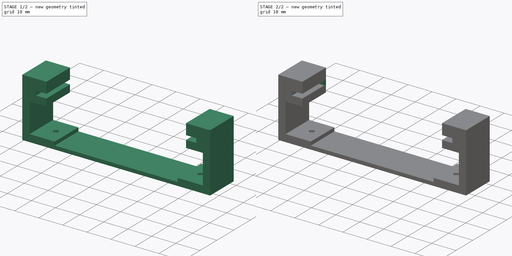
[diagram: build sequence overview — one tinted view per stage of 2, left to right]
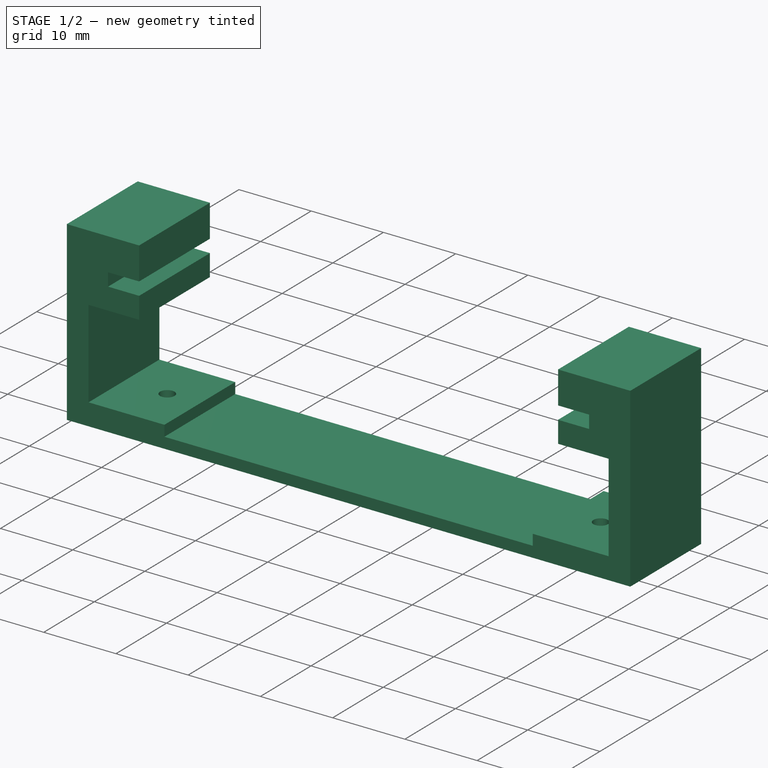
[diagram: stage 1 of 2 — iso view after this stage's code; geometry added in this stage tinted green]
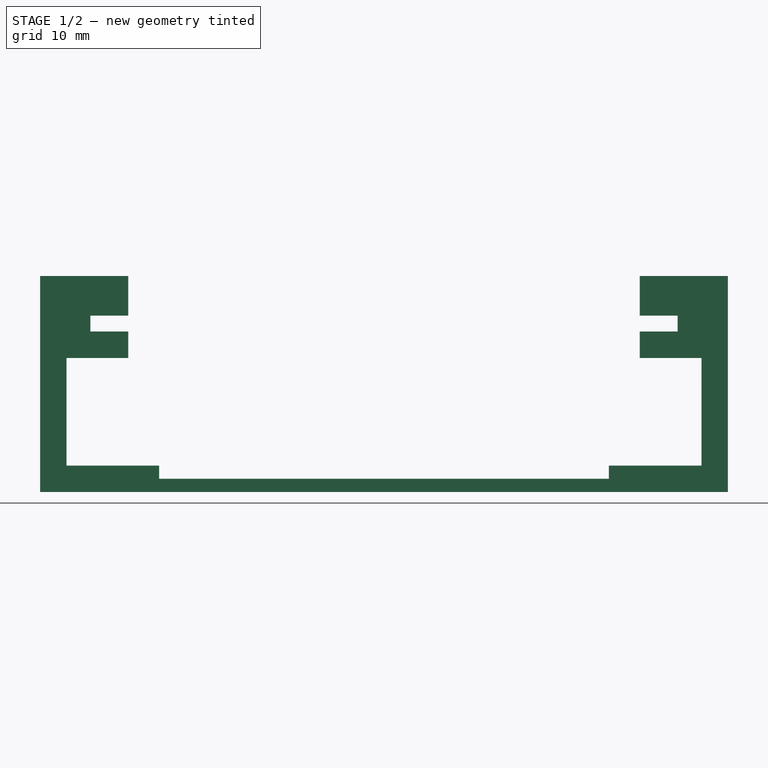
[diagram: stage 1 of 2 — front view after this stage's code; geometry added in this stage tinted green]
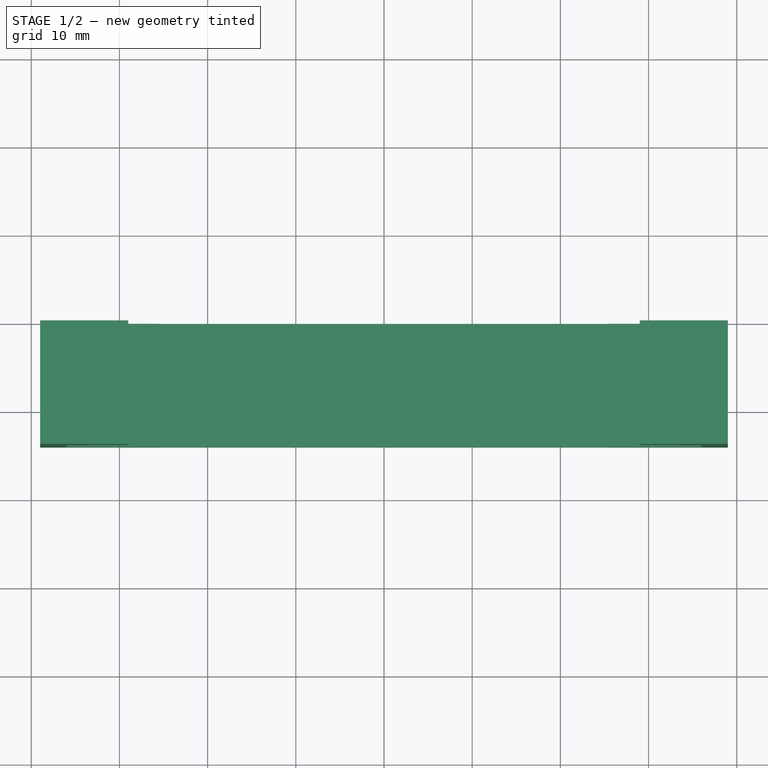
[diagram: stage 1 of 2 — top view after this stage's code; geometry added in this stage tinted green]
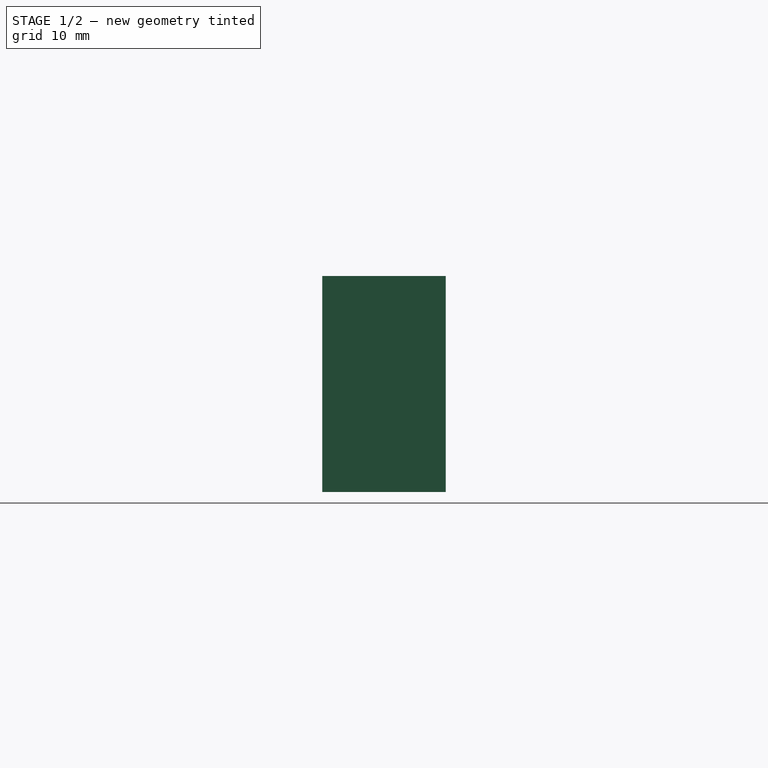
[diagram: stage 1 of 2 — right view after this stage's code; geometry added in this stage tinted green]
FCSTD DOCUMENT  (FreeCAD 0.18R16146 (Git))
Label: DiscoF4_Bracket_v1
License: All rights reserved
LicenseURL: http://en.wikipedia.org/wiki/All_rights_reserved
objects: Sketcher::SketchObject×3, PartDesign::Pad×2, PartDesign::Pocket×1, PartDesign::Body×1
note: 10 computed .brp shape members not serialized (recipe doc carries the construction recipe); baked Part::Feature solids carry a one-line shape summary decoded from their .brp

FEATURE [Sketcher::SketchObject] Sketch  label="bracket_main_sk"
  MapMode = 5
  Placement = pos=(0,0,0) rot=(1,0,0;1.5708rad)
  Support = -> [XZ_Plane]
  sketch-geometry (30):
    g0: LineSegment [constr] StartX=-33 StartY=0 StartZ=0 EndX=33 EndY=0 EndZ=0
    g1: LineSegment [constr] StartX=33 StartY=0 StartZ=0 EndX=33 EndY=-1.6 EndZ=0
    g2: LineSegment [constr] StartX=33 StartY=-1.6 StartZ=0 EndX=-33 EndY=-1.6 EndZ=0
    g3: LineSegment [constr] StartX=-33 StartY=-1.6 StartZ=0 EndX=-33 EndY=0 EndZ=0
    g4: LineSegment StartX=-33.3 StartY=0 StartZ=0 EndX=-33.3 EndY=-1.8 EndZ=0
    g5: LineSegment StartX=-33.3 StartY=-1.8 StartZ=0 EndX=-29 EndY=-1.8 EndZ=0
    g6: LineSegment StartX=-29 StartY=-1.8 StartZ=0 EndX=-29 EndY=-4.8 EndZ=0
    g7: LineSegment StartX=-29 StartY=-4.8 StartZ=0 EndX=-36 EndY=-4.8 EndZ=0
    g8: LineSegment StartX=-36 StartY=-4.8 StartZ=0 EndX=-36 EndY=-17 EndZ=0
    g9: LineSegment StartX=-36 StartY=-17 StartZ=0 EndX=-25.5 EndY=-17 EndZ=0
    g10: LineSegment StartX=-39 StartY=-20 StartZ=0 EndX=-39 EndY=4.5 EndZ=0
    g11: LineSegment StartX=-33.3 StartY=0 StartZ=0 EndX=-29 EndY=0 EndZ=0
    g12: LineSegment StartX=-29 StartY=0 StartZ=0 EndX=-29 EndY=4.5 EndZ=0
    g13: LineSegment StartX=-29 StartY=4.5 StartZ=0 EndX=-39 EndY=4.5 EndZ=0
    g14: LineSegment StartX=36 StartY=-4.8 StartZ=0 EndX=36 EndY=-17 EndZ=0
    g15: LineSegment StartX=29 StartY=-4.8 StartZ=0 EndX=36 EndY=-4.8 EndZ=0
    g16: LineSegment StartX=29 StartY=-1.8 StartZ=0 EndX=29 EndY=-4.8 EndZ=0
    g17: LineSegment StartX=33.3 StartY=-1.8 StartZ=0 EndX=29 EndY=-1.8 EndZ=0
    g18: LineSegment StartX=33.3 StartY=0 StartZ=0 EndX=33.3 EndY=-1.8 EndZ=0
    g19: LineSegment StartX=33.3 StartY=0 StartZ=0 EndX=29 EndY=0 EndZ=0
    g20: LineSegment StartX=29 StartY=0 StartZ=0 EndX=29 EndY=4.5 EndZ=0
    g21: LineSegment StartX=29 StartY=4.5 StartZ=0 EndX=39 EndY=4.5 EndZ=0
    g22: LineSegment StartX=39 StartY=-20 StartZ=0 EndX=39 EndY=4.5 EndZ=0
    g23: LineSegment StartX=36 StartY=-17 StartZ=0 EndX=25.5 EndY=-17 EndZ=0
    g24: LineSegment [constr] StartX=-29 StartY=-4.8 StartZ=0 EndX=29 EndY=-4.8 EndZ=0
    g25: LineSegment [constr] StartX=-29 StartY=4.5 StartZ=0 EndX=29 EndY=4.5 EndZ=0
    g26: LineSegment StartX=39 StartY=-20 StartZ=0 EndX=-39 EndY=-20 EndZ=0
    g27: LineSegment StartX=-25.5 StartY=-17 StartZ=0 EndX=-25.5 EndY=-18.5 EndZ=0
    g28: LineSegment StartX=-25.5 StartY=-18.5 StartZ=0 EndX=25.5 EndY=-18.5 EndZ=0
    g29: LineSegment StartX=25.5 StartY=-18.5 StartZ=0 EndX=25.5 EndY=-17 EndZ=0
  constraints (78):
    c: Coincident(g0,g1)
    c: Coincident(g1,g2)
    c: Coincident(g2,g3)
    c: Coincident(g3,g0)
    c: Horizontal(g2)
    c: Vertical(g1)
    c: Vertical(g3)
    c: PointOnObject(g0,g-1)
    c: Symmetric(g0,g0,g-2)
    c: DistanceX(g0,g0) = 66
    c: DistanceY(g3,g3) = 1.6
    c: Vertical(g4)
    c: Coincident(g4,g5)
    c: Horizontal(g5)
    c: Coincident(g5,g6)
    c: Vertical(g6)
    c: Coincident(g6,g7)
    c: Horizontal(g7)
    c: Coincident(g7,g8)
    c: Vertical(g8)
    c: Coincident(g8,g9)
    c: Horizontal(g9)
    c: Vertical(g10)
    c: Coincident(g4,g11)
    c: PointOnObject(g11,g0)
    c: Horizontal(g11)
    c: Coincident(g11,g12)
    c: Vertical(g12)
    c: Coincident(g12,g13)
    c: Horizontal(g13)
    c: Coincident(g10,g13)
    c: DistanceX(g13,g13) = 10
    c: DistanceY(g4,g4) = 1.8
    c: DistanceY(g6,g6) = 3
    c: DistanceY(g8,g4) = 17
    c: Vertical(g18)
    c: Coincident(g18,g17)
    c: Horizontal(g17)
    c: Coincident(g17,g16)
    c: Vertical(g16)
    c: Coincident(g16,g15)
    c: Horizontal(g15)
    c: Coincident(g15,g14)
    c: Vertical(g14)
    c: Coincident(g14,g23)
    c: Horizontal(g23)
    c: Vertical(g22)
    c: Coincident(g18,g19)
    c: Coincident(g19,g20)
    c: Vertical(g20)
    c: Coincident(g20,g21)
    c: Horizontal(g21)
    c: Coincident(g22,g21)
    c: Symmetric(g4,g18,g-2)
    c: DistanceX(g4,g18) = 66.6
    c: Symmetric(g11,g19,g-2)
    c: DistanceX(g10,g21) = 78
    c: Coincident(g24,g6)
    c: Coincident(g24,g15)
    c: Horizontal(g24)
    c: Coincident(g25,g12)
    c: Coincident(g25,g20)
    c: Equal(g25,g24)
    c: Symmetric(g10,g21,g-2)
    c: DistanceY(g21) = 4.5
    c: Symmetric(g9,g23,g-2)
    c: Coincident(g26,g22)
    c: Coincident(g26,g10)
    c: Horizontal(g26)
    c: Coincident(g27,g9)
    c: Vertical(g27)
    c: Coincident(g27,g28)
    c: Horizontal(g28)
    c: Coincident(g28,g29)
    c: Coincident(g29,g23)
    c: Vertical(g29)
    c: DistanceY(g10,g27) = 1.5
    c: DistanceY(g10,g8) = 3
FEATURE [PartDesign::Pad] Pad  label="bracket_main"
  Length = 14
  Length2 = 100
  Placement = pos=(0,0,0) rot=(1,0,0;1.5708rad)
  Profile = -> Sketch
  Type = 0
FEATURE [Sketcher::SketchObject] Sketch001
  MapMode = 5
  Placement = pos=(0,-4.4e-15,-20) rot=(1,0,0;3.14159rad)
  Support = -> [Pad]
  sketch-geometry (6):
    g0: LineSegment [constr] StartX=-36 StartY=0 StartZ=0 EndX=-25.5 EndY=0 EndZ=0
    g1: LineSegment [constr] StartX=-25.5 StartY=0 StartZ=0 EndX=-25.5 EndY=14 EndZ=0
    g2: LineSegment [constr] StartX=-25.5 StartY=14 StartZ=0 EndX=-36 EndY=14 EndZ=0
    g3: LineSegment [constr] StartX=-36 StartY=14 StartZ=0 EndX=-36 EndY=0 EndZ=0
    g4: Circle CenterX=-30 CenterY=7 CenterZ=0 NormalX=0 NormalY=0 NormalZ=1 AngleXU=0 Radius=1
    g5: Circle CenterX=30 CenterY=7 CenterZ=0 NormalX=0 NormalY=0 NormalZ=1 AngleXU=0 Radius=1
  constraints (15):
    c: Coincident(g0,g1)
    c: Coincident(g1,g2)
    c: Coincident(g2,g3)
    c: Coincident(g3,g0)
    c: Horizontal(g0)
    c: Horizontal(g2)
    c: Vertical(g1)
    c: Vertical(g3)
    c: DistanceX(g2,g2) = 10.5
    c: DistanceY(g3,g3) = 14
    c: DistanceY(g-1,g4) = 7
    c: Symmetric(g5,g4,g-2)
    c: DistanceX(g4,g5) = 60
    c: Diameter(g4) = 2
    c: Equal(g5,g4)
FEATURE [PartDesign::Pocket] Pocket  label="bracket_w_mnt_holes"
  BaseFeature = -> Pad
  Length = 5
  Length2 = 100
  Placement = pos=(0,0,0) rot=(1,0,0;1.5708rad)
  Profile = -> Sketch001
  Type = 0
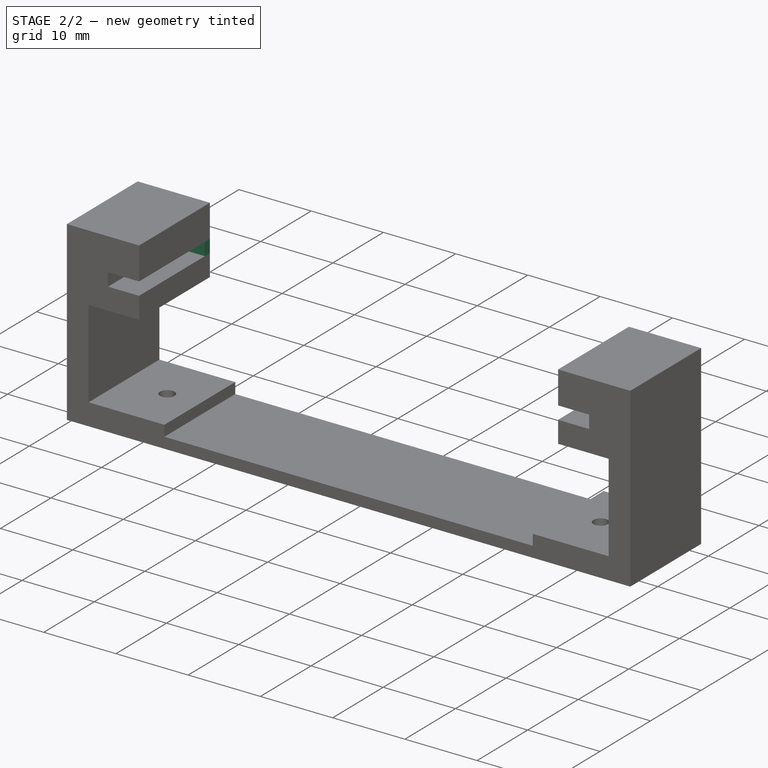
[diagram: stage 2 of 2 — iso view after this stage's code; geometry added in this stage tinted green]
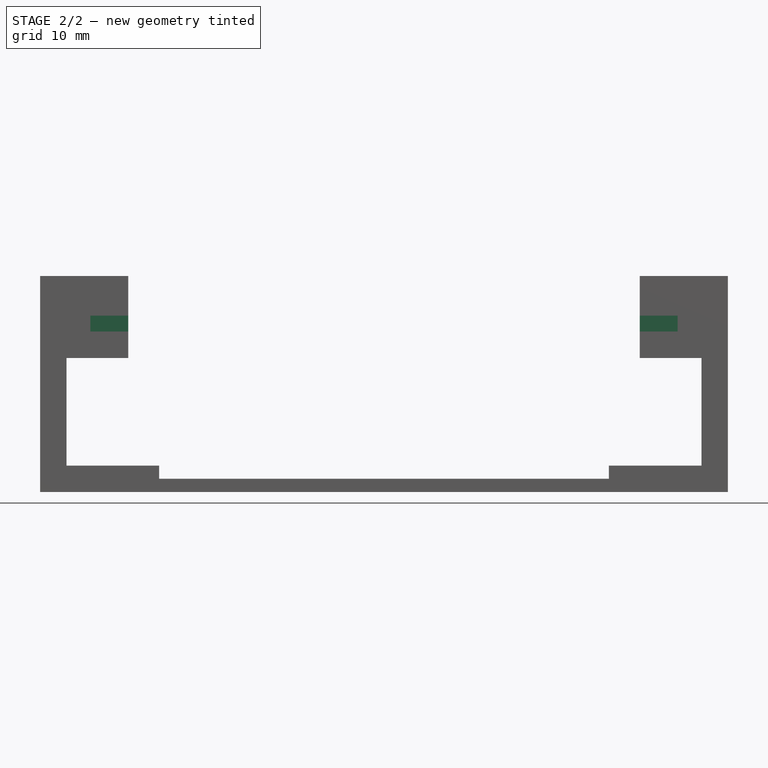
[diagram: stage 2 of 2 — front view after this stage's code; geometry added in this stage tinted green]
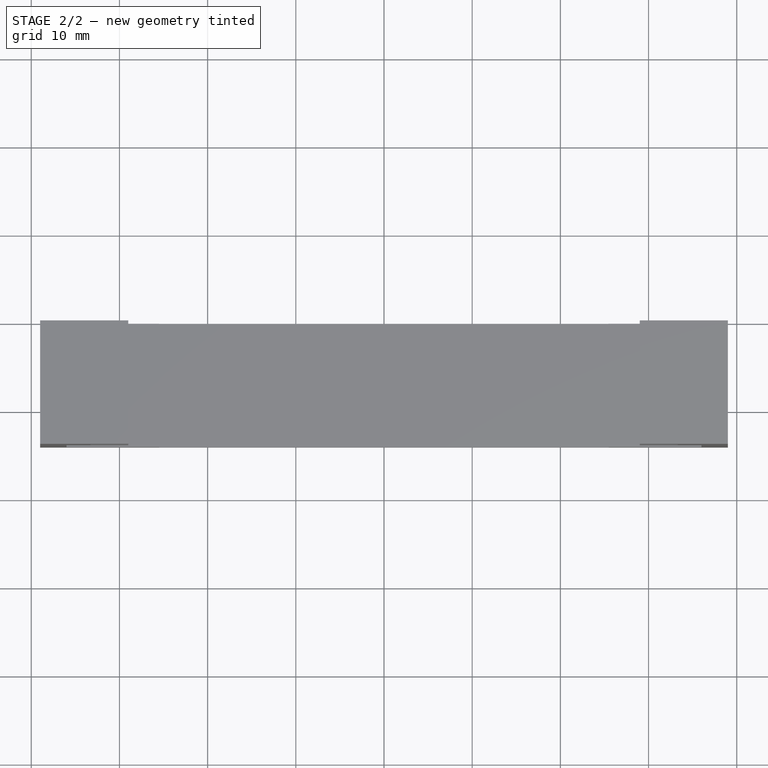
[diagram: stage 2 of 2 — top view after this stage's code; geometry added in this stage tinted green]
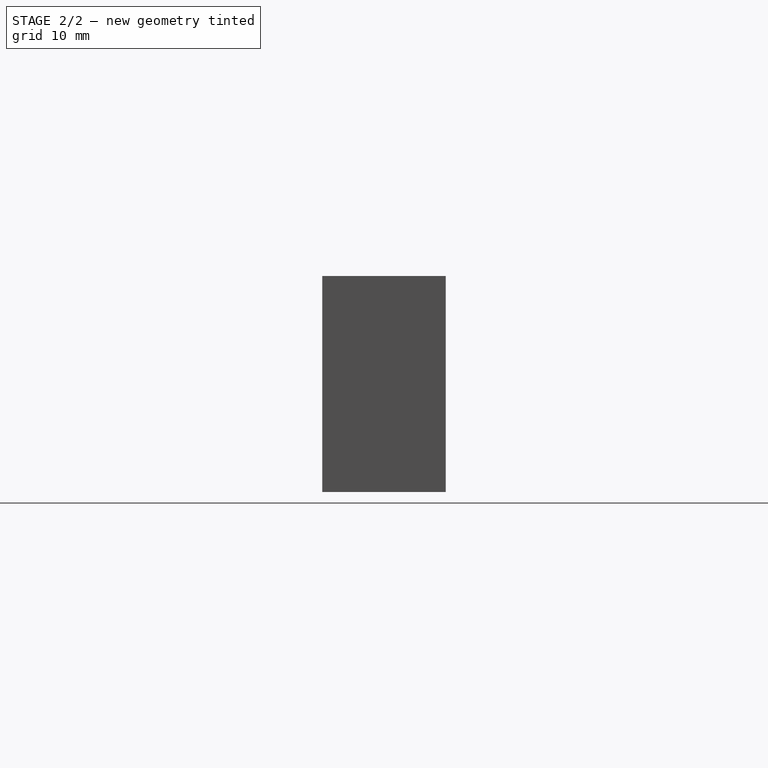
[diagram: stage 2 of 2 — right view after this stage's code; geometry added in this stage tinted green]
FEATURE [Sketcher::SketchObject] Sketch002
  MapMode = 5
  Placement = pos=(0,0,0) rot=(-1,0,0;1.5708rad)
  Support = -> [Pocket]
  sketch-geometry (8):
    g0: LineSegment StartX=-29 StartY=-0.5 StartZ=0 EndX=-34 EndY=-0.5 EndZ=0
    g1: LineSegment StartX=-34 StartY=-0.5 StartZ=0 EndX=-34 EndY=2.5 EndZ=0
    g2: LineSegment StartX=-34 StartY=2.5 StartZ=0 EndX=-29 EndY=2.5 EndZ=0
    g3: LineSegment StartX=-29 StartY=2.5 StartZ=0 EndX=-29 EndY=-0.5 EndZ=0
    g4: LineSegment StartX=29 StartY=-0.5 StartZ=0 EndX=34 EndY=-0.5 EndZ=0
    g5: LineSegment StartX=34 StartY=-0.5 StartZ=0 EndX=34 EndY=2.5 EndZ=0
    g6: LineSegment StartX=34 StartY=2.5 StartZ=0 EndX=29 EndY=2.5 EndZ=0
    g7: LineSegment StartX=29 StartY=2.5 StartZ=0 EndX=29 EndY=-0.5 EndZ=0
  constraints (16):
    c: Coincident(g0,g1)
    c: Coincident(g1,g2)
    c: Coincident(g2,g3)
    c: Coincident(g3,g0)
    c: Horizontal(g0)
    c: Horizontal(g2)
    c: Vertical(g1)
    c: Vertical(g3)
    c: Coincident(g4,g5)
    c: Coincident(g5,g6)
    c: Coincident(g6,g7)
    c: Coincident(g7,g4)
    c: Horizontal(g4)
    c: Horizontal(g6)
    c: Vertical(g5)
    c: Vertical(g7)
FEATURE [PartDesign::Pad] Pad001  label="bracket_w_limiters"
  BaseFeature = -> Pocket
  Length = 1
  Length2 = 100
  Placement = pos=(0,0,0) rot=(1,0,0;1.5708rad)
  Profile = -> Sketch002
  Reversed = true
  Type = 0
FEATURE [PartDesign::Body] Body
  Group = -> [Sketch,Pad,Sketch001,Pocket,Sketch002,Pad001]
  Origin = -> Origin
  Tip = -> Pad001
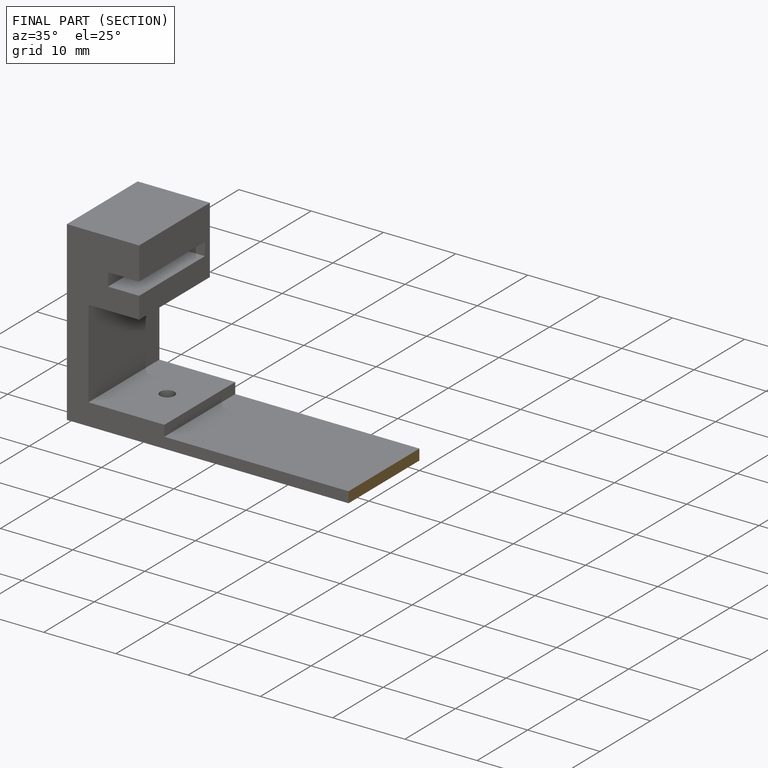
[diagram: finished part — half-section view (interior)]
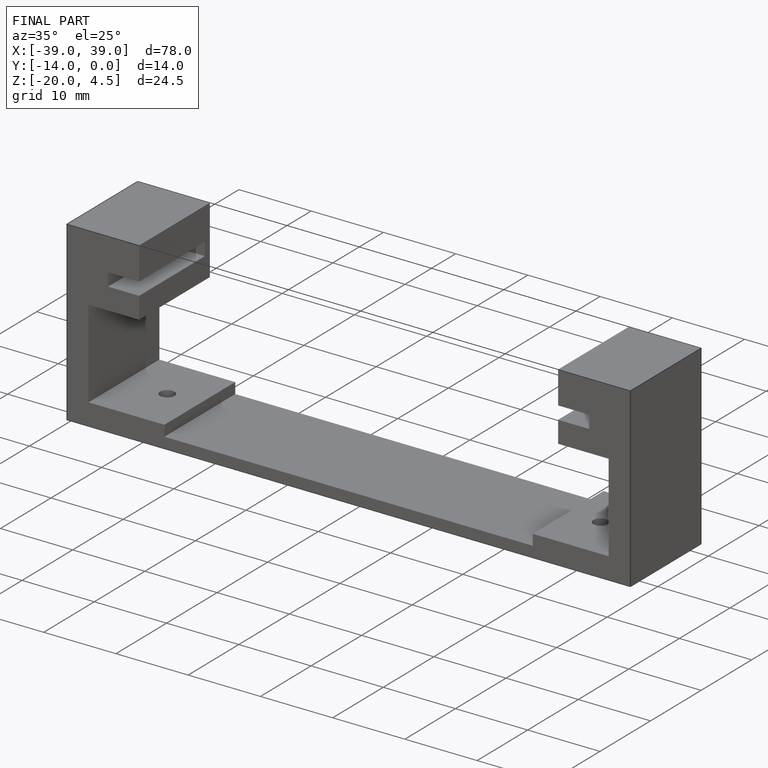
[diagram: finished part — iso view with bounding-box wireframe]
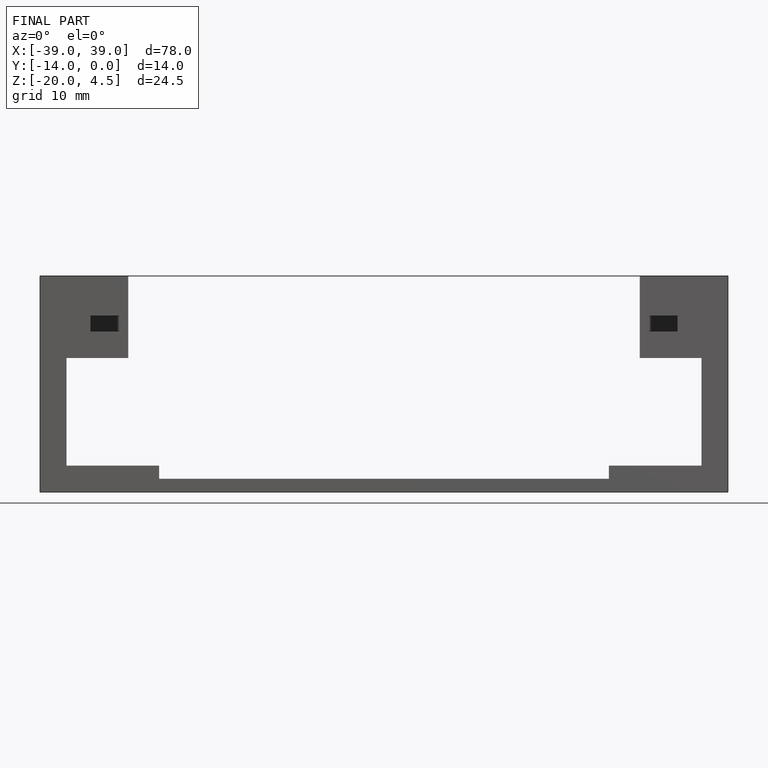
[diagram: finished part — front view with bounding-box wireframe]
